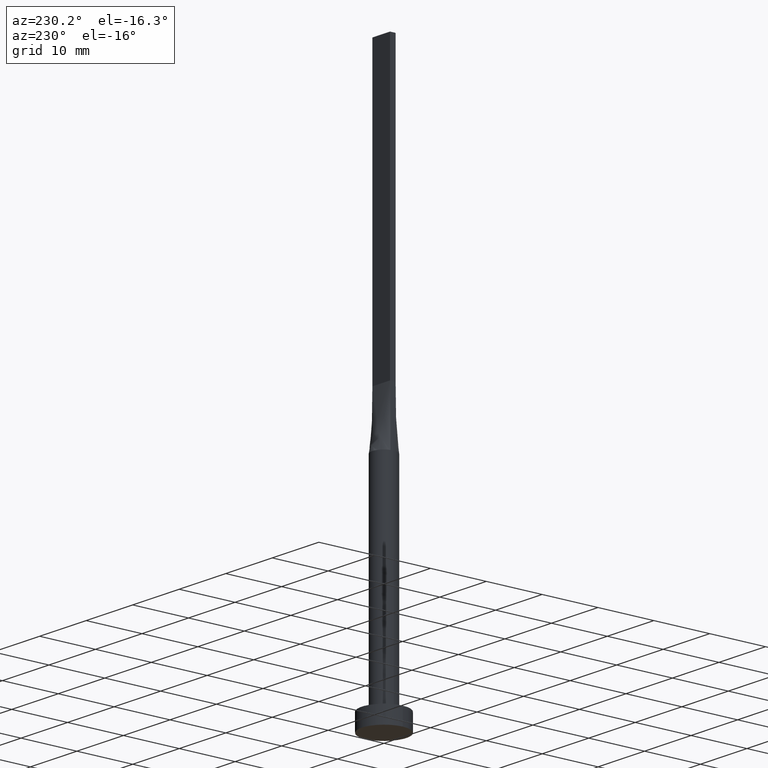
[diagram: clean part render]
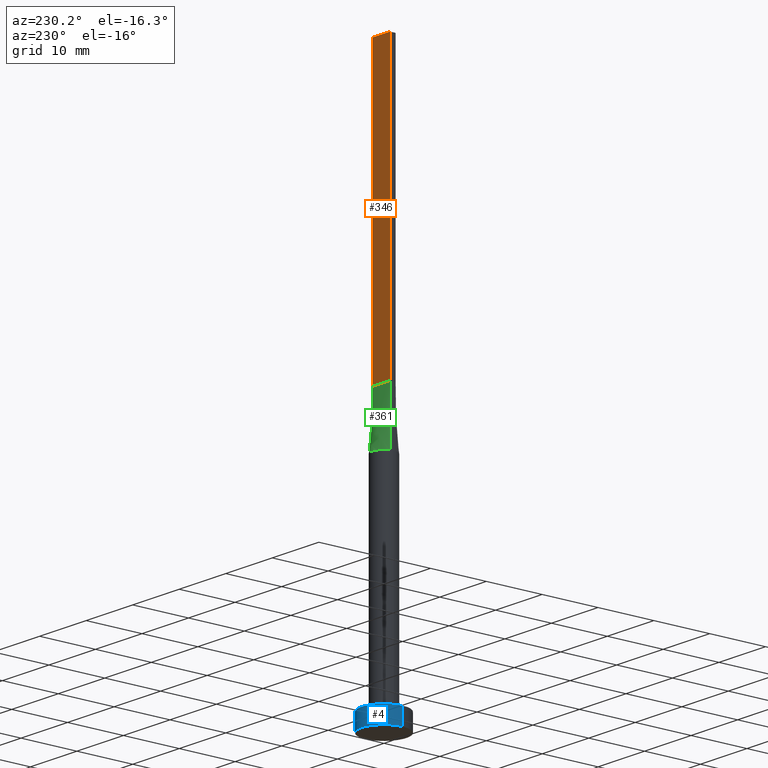
[diagram: same view with three faces highlighted in distinct colors, each labeled with its STEP entity id]
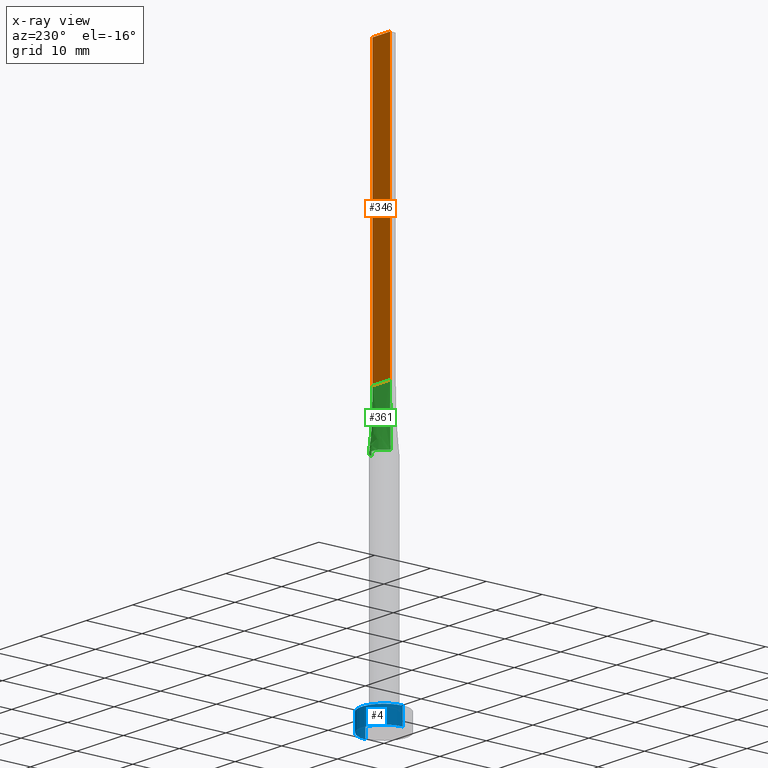
[diagram: x-ray of the same camera — body ghosted, the three highlighted faces saturated]
A machine part, auxiliary view with three faces highlighted in distinct colors.
The next image is the same camera in x-ray (body ghosted, the three faces saturated) — at least one of them is partly hidden behind the body in this view.
Their STEP definitions:

[orange] entity #346 — the highlighted planar face has unit normal (0, -1, 0).
#25 = LINE ( 'NONE', #465, #71 ) ;
#57 = PLANE ( 'NONE',  #207 ) ;
#65 = ORIENTED_EDGE ( 'NONE', *, *, #75, .T. ) ;
#71 = VECTOR ( 'NONE', #203, 1000.000000000000000 ) ;
#75 = EDGE_CURVE ( 'NONE', #76, #484, #466, .T. ) ;
#76 = VERTEX_POINT ( 'NONE', #455 ) ;
#88 = VERTEX_POINT ( 'NONE', #151 ) ;
#105 = FACE_OUTER_BOUND ( 'NONE', #501, .T. ) ;
#113 = LINE ( 'NONE', #348, #439 ) ;
#116 = DIRECTION ( 'NONE',  ( -0.000000000000000000, -0.000000000000000000, -1.000000000000000000 ) ) ;
#123 = CARTESIAN_POINT ( 'NONE',  ( 1.899999999999999689, 0.5000000000000002220, 100.0000000000000000 ) ) ;
#151 = CARTESIAN_POINT ( 'NONE',  ( -1.899999999999999689, 0.5000000000000002220, 100.0000000000000000 ) ) ;
#162 = CARTESIAN_POINT ( 'NONE',  ( -1.899999999999999689, 0.5000000000000002220, 50.00000000000000000 ) ) ;
#195 = CARTESIAN_POINT ( 'NONE',  ( -1.899999999999999689, 0.5000000000000002220, 50.00000000000000000 ) ) ;
#203 = DIRECTION ( 'NONE',  ( -1.000000000000000000, 0.000000000000000000, 0.000000000000000000 ) ) ;
#207 = AXIS2_PLACEMENT_3D ( 'NONE', #242, #291, #374 ) ;
#215 = DIRECTION ( 'NONE',  ( -0.000000000000000000, -0.000000000000000000, -1.000000000000000000 ) ) ;
#242 = CARTESIAN_POINT ( 'NONE',  ( 1.899999999999999689, 0.5000000000000002220, 100.0000000000000000 ) ) ;
#291 = DIRECTION ( 'NONE',  ( 0.000000000000000000, -1.000000000000000000, 0.000000000000000000 ) ) ;
#303 = ORIENTED_EDGE ( 'NONE', *, *, #352, .F. ) ;
#304 = CARTESIAN_POINT ( 'NONE',  ( -1.899999999999999689, 0.5000000000000002220, 100.0000000000000000 ) ) ;
#310 = ORIENTED_EDGE ( 'NONE', *, *, #548, .F. ) ;
#335 = VECTOR ( 'NONE', #546, 1000.000000000000000 ) ;
#346 = ADVANCED_FACE ( 'NONE', ( #105 ), #57, .F. ) ;
#348 = CARTESIAN_POINT ( 'NONE',  ( 1.899999999999999689, 0.5000000000000002220, 100.0000000000000000 ) ) ;
#352 = EDGE_CURVE ( 'NONE', #515, #88, #25, .T. ) ;
#374 = DIRECTION ( 'NONE',  ( 0.000000000000000000, -0.000000000000000000, -1.000000000000000000 ) ) ;
#438 = VECTOR ( 'NONE', #215, 1000.000000000000000 ) ;
#439 = VECTOR ( 'NONE', #116, 1000.000000000000000 ) ;
#455 = CARTESIAN_POINT ( 'NONE',  ( 1.899999999999999689, 0.5000000000000002220, 50.00000000000000000 ) ) ;
#465 = CARTESIAN_POINT ( 'NONE',  ( 1.899999999999999689, 0.5000000000000002220, 100.0000000000000000 ) ) ;
#466 = LINE ( 'NONE', #195, #335 ) ;
#468 = LINE ( 'NONE', #304, #438 ) ;
#484 = VERTEX_POINT ( 'NONE', #162 ) ;
#501 = EDGE_LOOP ( 'NONE', ( #65, #310, #303, #574 ) ) ;
#515 = VERTEX_POINT ( 'NONE', #123 ) ;
#537 = EDGE_CURVE ( 'NONE', #515, #76, #113, .T. ) ;
#546 = DIRECTION ( 'NONE',  ( -1.000000000000000000, -0.000000000000000000, -0.000000000000000000 ) ) ;
#548 = EDGE_CURVE ( 'NONE', #88, #484, #468, .T. ) ;
#574 = ORIENTED_EDGE ( 'NONE', *, *, #537, .T. ) ;

[blue] entity #4 — the highlighted cylindrical surface (edge-blend (fillet) strip) has radius 4 mm, axis along (-0, -0, -1).
#1 = VERTEX_POINT ( 'NONE', #328 ) ;
#4 = ADVANCED_FACE ( 'NONE', ( #241 ), #24, .T. ) ;
#10 = CARTESIAN_POINT ( 'NONE',  ( 4.000000000000000000, 4.898587196589412829E-16, 0.000000000000000000 ) ) ;
#13 = CIRCLE ( 'NONE', #459, 4.000000000000000000 ) ;
#14 = DIRECTION ( 'NONE',  ( -0.000000000000000000, -0.000000000000000000, -1.000000000000000000 ) ) ;
#15 = CARTESIAN_POINT ( 'NONE',  ( 4.000000000000000000, 4.898587196589412829E-16, 3.000000000000000000 ) ) ;
#24 = CYLINDRICAL_SURFACE ( 'NONE', #227, 4.000000000000000000 ) ;
#48 = DIRECTION ( 'NONE',  ( -0.000000000000000000, -0.000000000000000000, -1.000000000000000000 ) ) ;
#49 = CARTESIAN_POINT ( 'NONE',  ( -4.000000000000000000, 0.000000000000000000, 3.000000000000000000 ) ) ;
#79 = ORIENTED_EDGE ( 'NONE', *, *, #144, .T. ) ;
#144 = EDGE_CURVE ( 'NONE', #307, #299, #183, .T. ) ;
#145 = DIRECTION ( 'NONE',  ( 0.000000000000000000, 0.000000000000000000, 1.000000000000000000 ) ) ;
#160 = DIRECTION ( 'NONE',  ( -1.000000000000000000, 0.000000000000000000, 0.000000000000000000 ) ) ;
#183 = LINE ( 'NONE', #397, #470 ) ;
#219 = CARTESIAN_POINT ( 'NONE',  ( 0.000000000000000000, 0.000000000000000000, 0.000000000000000000 ) ) ;
#224 = EDGE_LOOP ( 'NONE', ( #411, #79, #505, #443 ) ) ;
#227 = AXIS2_PLACEMENT_3D ( 'NONE', #377, #14, #160 ) ;
#229 = CIRCLE ( 'NONE', #507, 4.000000000000000000 ) ;
#235 = DIRECTION ( 'NONE',  ( -0.000000000000000000, -0.000000000000000000, -1.000000000000000000 ) ) ;
#241 = FACE_OUTER_BOUND ( 'NONE', #224, .T. ) ;
#245 = CARTESIAN_POINT ( 'NONE',  ( 0.000000000000000000, 0.000000000000000000, 3.000000000000000000 ) ) ;
#299 = VERTEX_POINT ( 'NONE', #10 ) ;
#307 = VERTEX_POINT ( 'NONE', #15 ) ;
#308 = DIRECTION ( 'NONE',  ( 1.000000000000000000, 0.000000000000000000, 0.000000000000000000 ) ) ;
#318 = EDGE_CURVE ( 'NONE', #381, #1, #542, .T. ) ;
#324 = DIRECTION ( 'NONE',  ( 1.000000000000000000, 0.000000000000000000, 0.000000000000000000 ) ) ;
#328 = CARTESIAN_POINT ( 'NONE',  ( -4.000000000000000000, 0.000000000000000000, 0.000000000000000000 ) ) ;
#377 = CARTESIAN_POINT ( 'NONE',  ( 0.000000000000000000, 0.000000000000000000, 3.000000000000000000 ) ) ;
#381 = VERTEX_POINT ( 'NONE', #491 ) ;
#383 = EDGE_CURVE ( 'NONE', #307, #381, #13, .T. ) ;
#397 = CARTESIAN_POINT ( 'NONE',  ( 4.000000000000000000, 4.898587196589412829E-16, 3.000000000000000000 ) ) ;
#411 = ORIENTED_EDGE ( 'NONE', *, *, #383, .F. ) ;
#443 = ORIENTED_EDGE ( 'NONE', *, *, #318, .F. ) ;
#447 = VECTOR ( 'NONE', #235, 1000.000000000000000 ) ;
#459 = AXIS2_PLACEMENT_3D ( 'NONE', #245, #145, #324 ) ;
#470 = VECTOR ( 'NONE', #48, 1000.000000000000000 ) ;
#491 = CARTESIAN_POINT ( 'NONE',  ( -4.000000000000000000, 0.000000000000000000, 3.000000000000000000 ) ) ;
#505 = ORIENTED_EDGE ( 'NONE', *, *, #520, .T. ) ;
#507 = AXIS2_PLACEMENT_3D ( 'NONE', #219, #521, #308 ) ;
#520 = EDGE_CURVE ( 'NONE', #299, #1, #229, .T. ) ;
#521 = DIRECTION ( 'NONE',  ( 0.000000000000000000, 0.000000000000000000, 1.000000000000000000 ) ) ;
#542 = LINE ( 'NONE', #49, #447 ) ;

[green] entity #361 — the highlighted face is a freeform B-spline surface patch.
#17 = LINE ( 'NONE', #143, #92 ) ;
#18 = CARTESIAN_POINT ( 'NONE',  ( 0.7916666666666702934, 0.5000000000000002220, 50.00000000000000000 ) ) ;
#19 = CARTESIAN_POINT ( 'NONE',  ( 1.920830191244603746, 0.8725264301372623876, 40.00000000000000000 ) ) ;
#21 = CARTESIAN_POINT ( 'NONE',  ( 0.2698109971861041290, 2.100000000000000089, 39.99999999999999289 ) ) ;
#45 = CARTESIAN_POINT ( 'NONE',  ( -1.583604922800830428, 1.399063468093436402, 40.00000000000000000 ) ) ;
#63 = CARTESIAN_POINT ( 'NONE',  ( -1.920830191244604412, 0.8725264301372623876, 40.00000000000000711 ) ) ;
#67 = CARTESIAN_POINT ( 'NONE',  ( 1.235326090059014614, 1.714395692508636770, 40.00000000000002132 ) ) ;
#75 = EDGE_CURVE ( 'NONE', #76, #484, #466, .T. ) ;
#76 = VERTEX_POINT ( 'NONE', #455 ) ;
#78 = CARTESIAN_POINT ( 'NONE',  ( 1.741666666666667362, 0.5000000000000002220, 50.00000000000000711 ) ) ;
#90 = CARTESIAN_POINT ( 'NONE',  ( 1.719043754744862040, 1.223020672007445464, 40.00000000000001421 ) ) ;
#92 = VECTOR ( 'NONE', #576, 1000.000000000000114 ) ;
#93 = ORIENTED_EDGE ( 'NONE', *, *, #75, .F. ) ;
#96 = CARTESIAN_POINT ( 'NONE',  ( 2.030996101999494652, 0.5344731476277209126, 40.00000000000000000 ) ) ;
#103 = CARTESIAN_POINT ( 'NONE',  ( -2.030856528251557602, 0.5344359284872521876, 40.00000000000000000 ) ) ;
#111 = CARTESIAN_POINT ( 'NONE',  ( -1.987786580065029174, 0.6981017315960602598, 39.99999999999999289 ) ) ;
#118 = EDGE_CURVE ( 'NONE', #294, #76, #17, .T. ) ;
#127 = CARTESIAN_POINT ( 'NONE',  ( 1.987786580065029174, 0.6981017315960605929, 40.00000000000000000 ) ) ;
#134 = EDGE_LOOP ( 'NONE', ( #390, #395, #93, #343 ) ) ;
#135 = CARTESIAN_POINT ( 'NONE',  ( 1.266666666666669494, 0.5000000000000002220, 50.00000000000000711 ) ) ;
#143 = CARTESIAN_POINT ( 'NONE',  ( 1.965428264125778535, 0.5172179642436265379, 45.00000000000000000 ) ) ;
#147 = CARTESIAN_POINT ( 'NONE',  ( -1.108333333333330062, 0.5000000000000002220, 50.00000000000000000 ) ) ;
#152 = CARTESIAN_POINT ( 'NONE',  ( -0.6333333333333288628, 0.5000000000000002220, 50.00000000000000000 ) ) ;
#154 = CARTESIAN_POINT ( 'NONE',  ( -1.583333333333331927, 0.5000000000000002220, 50.00000000000000000 ) ) ;
#159 = DIRECTION ( 'NONE',  ( 0.01308445504626045038, -0.003443277643752733208, 0.9999084662483913588 ) ) ;
#162 = CARTESIAN_POINT ( 'NONE',  ( -1.899999999999999689, 0.5000000000000002220, 50.00000000000000000 ) ) ;
#185 = CARTESIAN_POINT ( 'NONE',  ( 0.5389299406762297906, 2.046272663899431077, 40.00000000000000000 ) ) ;
#195 = CARTESIAN_POINT ( 'NONE',  ( -1.899999999999999689, 0.5000000000000002220, 50.00000000000000000 ) ) ;
#201 = CARTESIAN_POINT ( 'NONE',  ( 1.719043754744862040, 1.223020672007445464, 40.00000000000001421 ) ) ;
#205 = CARTESIAN_POINT ( 'NONE',  ( -0.2698109971861040179, 2.100000000000000089, 40.00000000000000711 ) ) ;
#213 = LINE ( 'NONE', #340, #280 ) ;
#236 = CARTESIAN_POINT ( 'NONE',  ( -1.741666666666665808, 0.5000000000000002220, 50.00000000000000000 ) ) ;
#243 = EDGE_CURVE ( 'NONE', #294, #509, #285, .T. ) ;
#250 = CARTESIAN_POINT ( 'NONE',  ( 1.583604922800830428, 1.399063468093436624, 40.00000000000000000 ) ) ;
#251 = B_SPLINE_SURFACE_WITH_KNOTS ( 'NONE', 3, 1, ( 
 ( #506, #463 ),
 ( #423, #78 ),
 ( #566, #295 ),
 ( #90, #135 ),
 ( #250, #552 ),
 ( #413, #18 ),
 ( #369, #499 ),
 ( #185, #325 ),
 ( #524, #289 ),
 ( #551, #372 ),
 ( #412, #508 ),
 ( #417, #152 ),
 ( #410, #461 ),
 ( #321, #147 ),
 ( #368, #281 ),
 ( #63, #154 ),
 ( #111, #236 ),
 ( #103, #297 ) ),
 .UNSPECIFIED., .F., .F., .F.,
 ( 4, 2, 2, 2, 2, 2, 2, 2, 4 ),
 ( 2, 2 ),
 ( 0.000000000000000000, 0.1250000000000000278, 0.2500000000000000555, 0.3750000000000001110, 0.5000000000000000000, 0.6250000000000000000, 0.7500000000000000000, 0.8750000000000001110, 1.000000000000000000 ),
 ( 0.000000000000000000, 1.000000000000000000 ),
 .UNSPECIFIED. ) ;
#255 = CARTESIAN_POINT ( 'NONE',  ( 1.021961681204346606, 1.852908961101259244, 40.00000000000000711 ) ) ;
#280 = VECTOR ( 'NONE', #159, 1000.000000000000114 ) ;
#281 = CARTESIAN_POINT ( 'NONE',  ( -1.266666666666664165, 0.5000000000000002220, 50.00000000000000000 ) ) ;
#285 = B_SPLINE_CURVE_WITH_KNOTS ( 'NONE', 3,
 ( #427, #127, #19, #201, #298, #67, #255, #418, #21, #205, #379, #562, #442, #45, #331, #407, #402, #362 ),
 .UNSPECIFIED., .F., .F.,
 ( 4, 2, 2, 2, 2, 2, 2, 2, 4 ),
 ( 0.000000000000000000, 0.1250000000000000278, 0.2500000000000000555, 0.3750000000000001110, 0.5000000000000000000, 0.6250000000000000000, 0.7500000000000000000, 0.8750000000000001110, 1.000000000000000000 ),
 .UNSPECIFIED. ) ;
#289 = CARTESIAN_POINT ( 'NONE',  ( 0.1583333333333381276, 0.5000000000000002220, 50.00000000000000000 ) ) ;
#294 = VERTEX_POINT ( 'NONE', #96 ) ;
#295 = CARTESIAN_POINT ( 'NONE',  ( 1.583333333333334814, 0.5000000000000002220, 50.00000000000000711 ) ) ;
#297 = CARTESIAN_POINT ( 'NONE',  ( -1.899999999999999689, 0.5000000000000002220, 50.00000000000000000 ) ) ;
#298 = CARTESIAN_POINT ( 'NONE',  ( 1.583604922800830428, 1.399063468093436624, 40.00000000000000000 ) ) ;
#321 = CARTESIAN_POINT ( 'NONE',  ( -1.583604922800830428, 1.399063468093436402, 40.00000000000000000 ) ) ;
#325 = CARTESIAN_POINT ( 'NONE',  ( 0.3166666666666711483, 0.5000000000000002220, 50.00000000000000000 ) ) ;
#331 = CARTESIAN_POINT ( 'NONE',  ( -1.719043754744861596, 1.223020672007445242, 39.99999999999999289 ) ) ;
#335 = VECTOR ( 'NONE', #546, 1000.000000000000000 ) ;
#340 = CARTESIAN_POINT ( 'NONE',  ( -1.965428264125778535, 0.5172179642436262048, 45.00000000000000000 ) ) ;
#343 = ORIENTED_EDGE ( 'NONE', *, *, #118, .F. ) ;
#361 = ADVANCED_FACE ( 'NONE', ( #518 ), #251, .T. ) ;
#362 = CARTESIAN_POINT ( 'NONE',  ( -2.031019593402089818, 0.5344793603115657321, 40.00000000000000000 ) ) ;
#368 = CARTESIAN_POINT ( 'NONE',  ( -1.719043754744861596, 1.223020672007445242, 39.99999999999999289 ) ) ;
#369 = CARTESIAN_POINT ( 'NONE',  ( 1.021961681204346606, 1.852908961101259244, 40.00000000000000711 ) ) ;
#372 = CARTESIAN_POINT ( 'NONE',  ( -0.1583333333333283577, 0.5000000000000002220, 50.00000000000000000 ) ) ;
#378 = CARTESIAN_POINT ( 'NONE',  ( -2.031019593402089818, 0.5344793603115657321, 40.00000000000000000 ) ) ;
#379 = CARTESIAN_POINT ( 'NONE',  ( -0.5389299406762299016, 2.046272663899431965, 39.99999999999999289 ) ) ;
#390 = ORIENTED_EDGE ( 'NONE', *, *, #243, .T. ) ;
#395 = ORIENTED_EDGE ( 'NONE', *, *, #482, .T. ) ;
#402 = CARTESIAN_POINT ( 'NONE',  ( -1.987786580065029174, 0.6981017315960602598, 39.99999999999999289 ) ) ;
#407 = CARTESIAN_POINT ( 'NONE',  ( -1.920830191244604412, 0.8725264301372623876, 40.00000000000000711 ) ) ;
#410 = CARTESIAN_POINT ( 'NONE',  ( -1.235326090059014836, 1.714395692508636326, 40.00000000000000000 ) ) ;
#412 = CARTESIAN_POINT ( 'NONE',  ( -0.5389299406762299016, 2.046272663899431965, 39.99999999999999289 ) ) ;
#413 = CARTESIAN_POINT ( 'NONE',  ( 1.235326090059014614, 1.714395692508636770, 40.00000000000002132 ) ) ;
#417 = CARTESIAN_POINT ( 'NONE',  ( -1.021961681204346384, 1.852908961101259022, 39.99999999999998579 ) ) ;
#418 = CARTESIAN_POINT ( 'NONE',  ( 0.5389299406762297906, 2.046272663899431077, 40.00000000000000000 ) ) ;
#423 = CARTESIAN_POINT ( 'NONE',  ( 1.987786580065029174, 0.6981017315960605929, 40.00000000000000000 ) ) ;
#427 = CARTESIAN_POINT ( 'NONE',  ( 2.030996101999494652, 0.5344731476277209126, 40.00000000000000000 ) ) ;
#442 = CARTESIAN_POINT ( 'NONE',  ( -1.235326090059014836, 1.714395692508636326, 40.00000000000000000 ) ) ;
#455 = CARTESIAN_POINT ( 'NONE',  ( 1.899999999999999689, 0.5000000000000002220, 50.00000000000000000 ) ) ;
#461 = CARTESIAN_POINT ( 'NONE',  ( -0.7916666666666625218, 0.5000000000000002220, 50.00000000000000000 ) ) ;
#463 = CARTESIAN_POINT ( 'NONE',  ( 1.899999999999999689, 0.5000000000000002220, 50.00000000000000000 ) ) ;
#466 = LINE ( 'NONE', #195, #335 ) ;
#482 = EDGE_CURVE ( 'NONE', #509, #484, #213, .T. ) ;
#484 = VERTEX_POINT ( 'NONE', #162 ) ;
#499 = CARTESIAN_POINT ( 'NONE',  ( 0.6333333333333373005, 0.5000000000000002220, 50.00000000000000000 ) ) ;
#506 = CARTESIAN_POINT ( 'NONE',  ( 2.030856528251557602, 0.5344359284872521876, 40.00000000000000000 ) ) ;
#508 = CARTESIAN_POINT ( 'NONE',  ( -0.3166666666666618224, 0.5000000000000002220, 50.00000000000000000 ) ) ;
#509 = VERTEX_POINT ( 'NONE', #378 ) ;
#518 = FACE_OUTER_BOUND ( 'NONE', #134, .T. ) ;
#524 = CARTESIAN_POINT ( 'NONE',  ( 0.2698109971861041290, 2.100000000000000089, 39.99999999999999289 ) ) ;
#546 = DIRECTION ( 'NONE',  ( -1.000000000000000000, -0.000000000000000000, -0.000000000000000000 ) ) ;
#551 = CARTESIAN_POINT ( 'NONE',  ( -0.2698109971861040179, 2.100000000000000089, 40.00000000000000711 ) ) ;
#552 = CARTESIAN_POINT ( 'NONE',  ( 1.108333333333336279, 0.5000000000000002220, 50.00000000000000000 ) ) ;
#562 = CARTESIAN_POINT ( 'NONE',  ( -1.021961681204346384, 1.852908961101259022, 39.99999999999998579 ) ) ;
#566 = CARTESIAN_POINT ( 'NONE',  ( 1.920830191244603746, 0.8725264301372623876, 40.00000000000000000 ) ) ;
#576 = DIRECTION ( 'NONE',  ( -0.01308445504626045038, -0.003443277643752798260, 0.9999084662483913588 ) ) ;